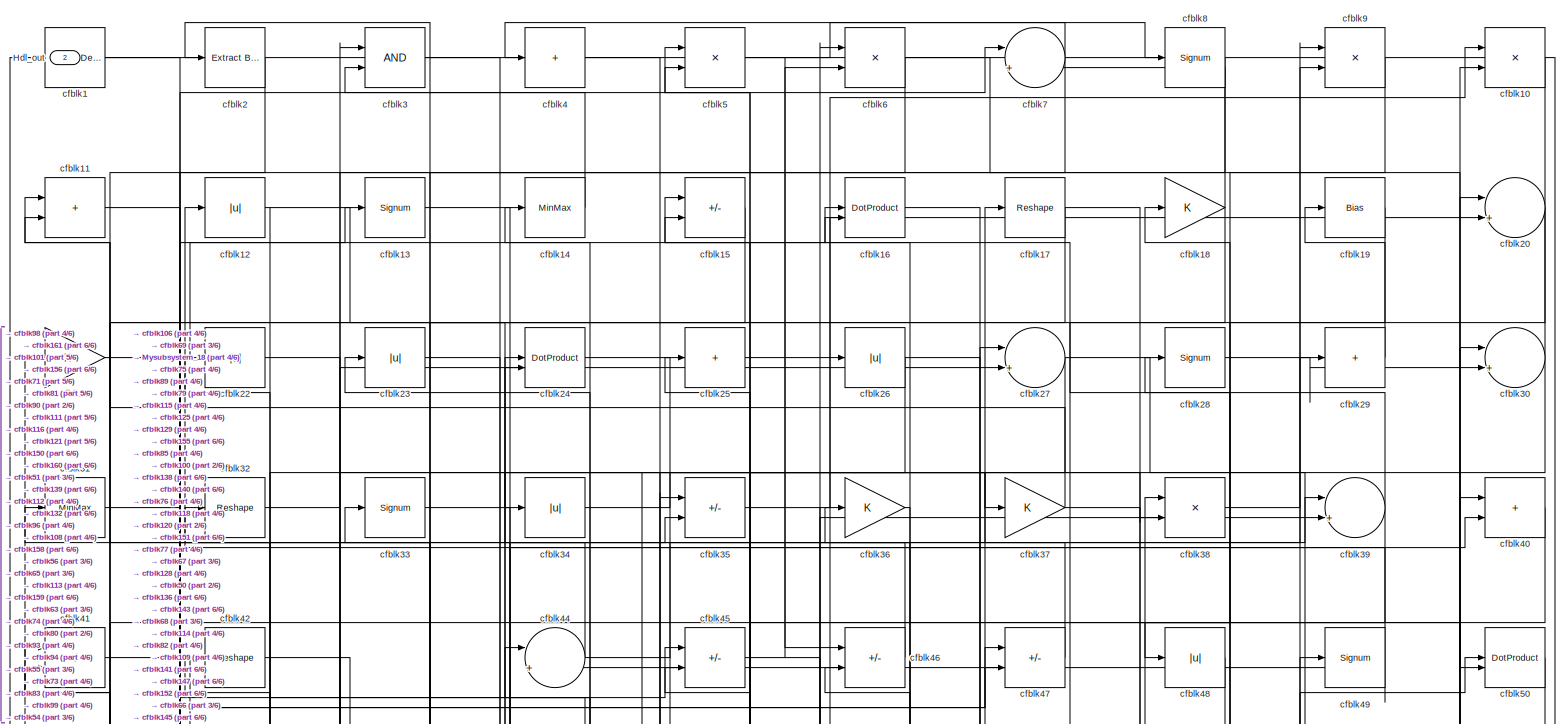
[diagram: root canvas - part 1/6, full width, top band]
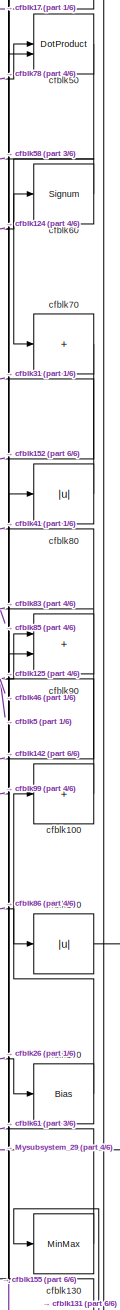
[diagram: root canvas - part 2/6, middle right region]
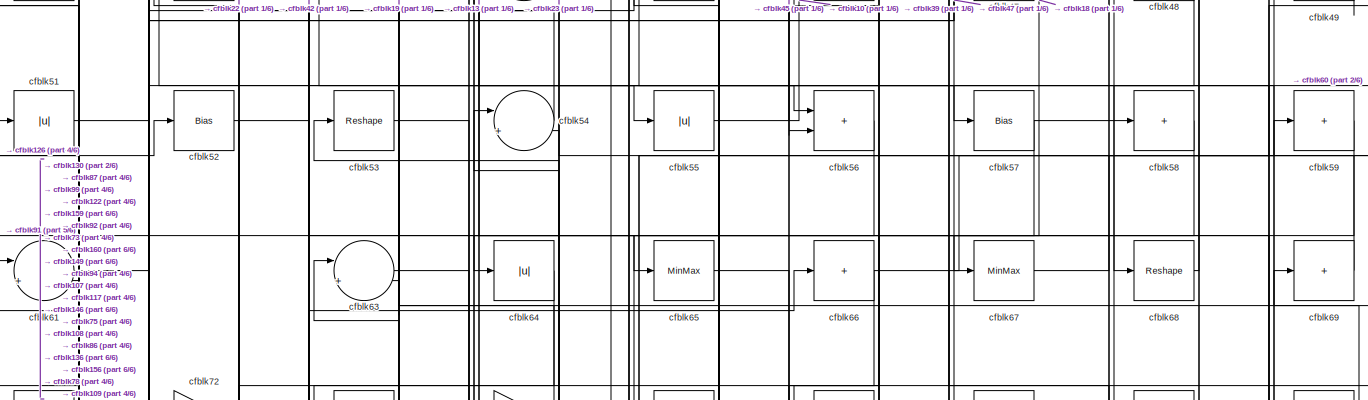
[diagram: root canvas - part 3/6, full width, middle band]
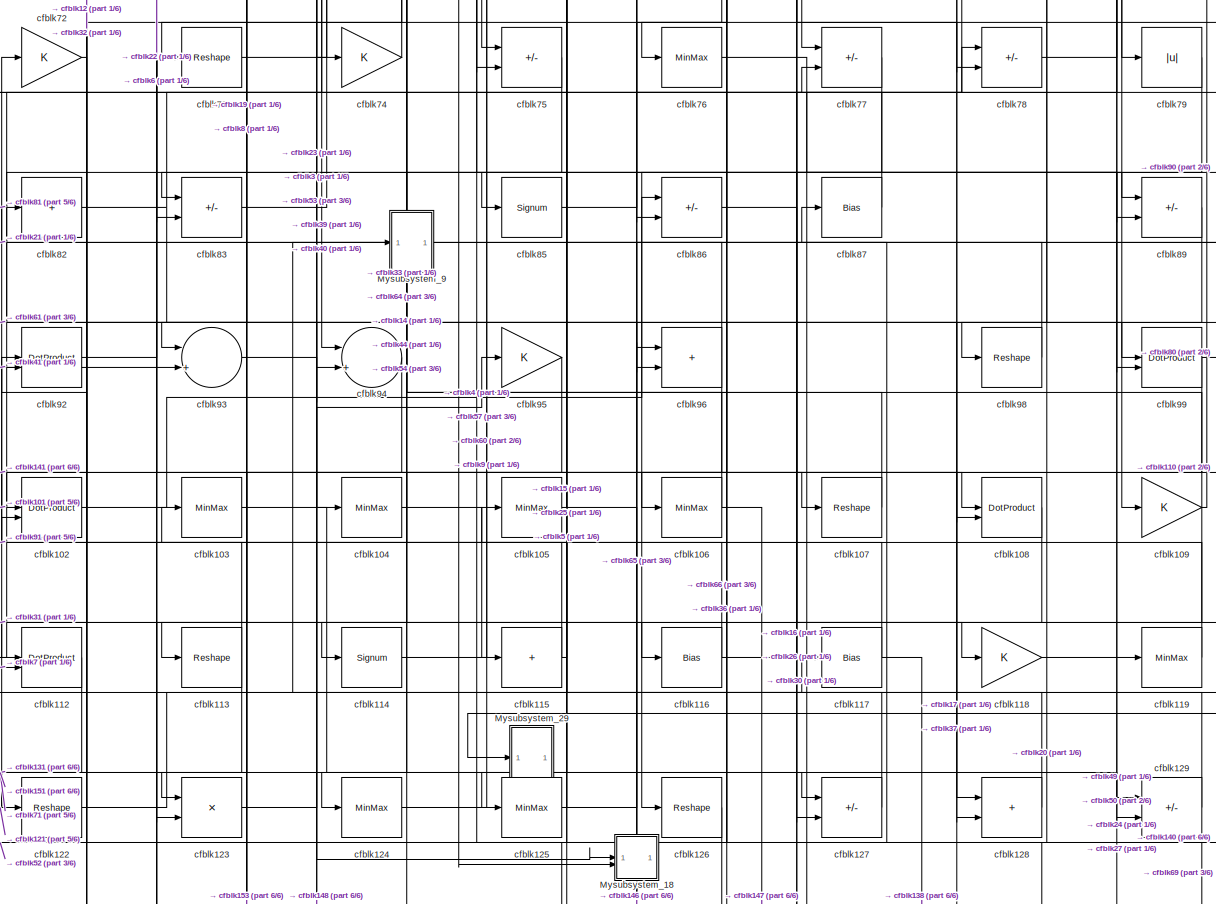
[diagram: root canvas - part 4/6, full width, middle band]
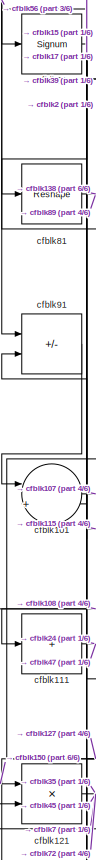
[diagram: root canvas - part 5/6, middle left region]
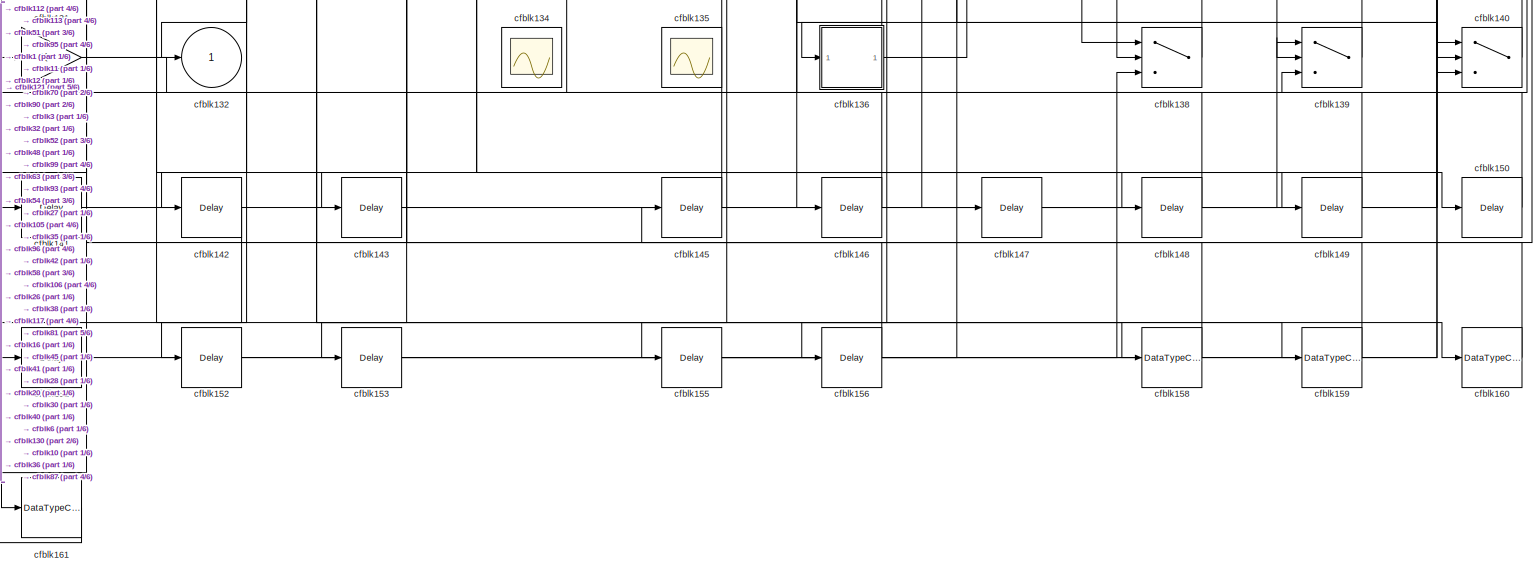
[diagram: root canvas - part 6/6, full width, bottom band]
MODEL slx_ad03935e5773
KIND model
CONFIG AbsTol = auto
CONFIG EnableMultiTasking = off
CONFIG FixedStep = auto
CONFIG MaxStep = auto
CONFIG MinStep = auto
CONFIG RelTol = 1e-3
CONFIG SampleTimeConstraint = Unconstrained
CONFIG SolverName = VariableStepAuto
CONFIG StartTime = 0.0
CONFIG StopTime = 10.0
BLOCK [Outport] Hdl_out
  OutDataTypeStr = uint8
  Port = 2
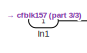
[diagram: Mysubsystem_18 - part 1/3, top left region]
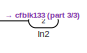
[diagram: Mysubsystem_18 - part 2/3, top left region]
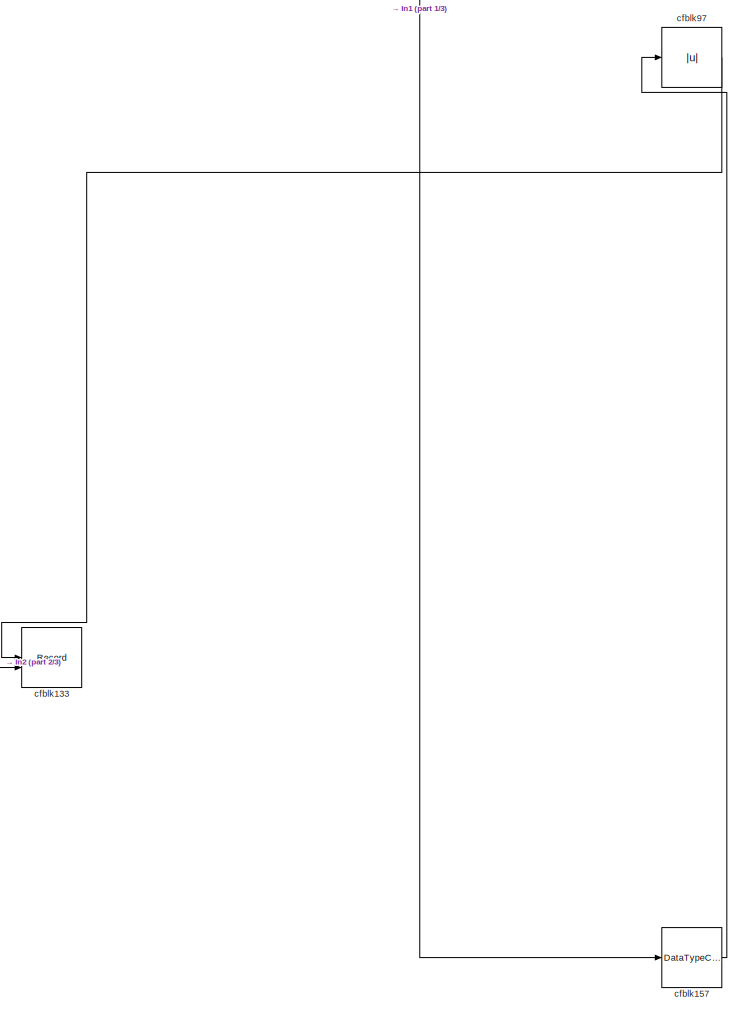
[diagram: Mysubsystem_18 - part 3/3, full width, bottom band]
BLOCK [SubSystem] Mysubsystem_18
  RTWFcnName = Mysubsystem_18
  RTWFcnNameOpts = User specified
  RTWFileNameOpts = Use function name
  RTWSystemCode = Reusable function
  TreatAsAtomicUnit = on
BLOCK [Inport] Mysubsystem_18/In1
BLOCK [Inport] Mysubsystem_18/In2
  Port = 2
BLOCK [Record] Mysubsystem_18/cfblk133
  CompatibilityTag = XY
  FileSettingsInternal = {"entries":[{"content":{"excelSettings":{"content":{},"type":"Streamout.ExcelSettings"}},"type":"Streamout.FileSettingStorage","uuid":""}],"packageUris":["http:\/\/schema.mathworks.com\/mf0\/streamout_blocks\/R2020a"],"version":"1.0"}
  Layout = [1 1]
  SignalsInternal = {"entries":[{"content":{},"type":"RecordBlkView.InputSignals","uuid":""}],"packageUris":["http:\/\/schema.mathworks.com\/mf0\/streamout_blocks\/R2020a"],"version":"1.0"}
  VisualizationBindings = {"xyplotplugin":{"info":[{"series":[],"subplotID":1}]}}
  st = -1
BLOCK [DataTypeConversion] Mysubsystem_18/cfblk157
  OutDataTypeStr = uint8
  RndMeth = Floor
  SaturateOnIntegerOverflow = off
BLOCK [Abs] Mysubsystem_18/cfblk97
  SaturateOnIntegerOverflow = off
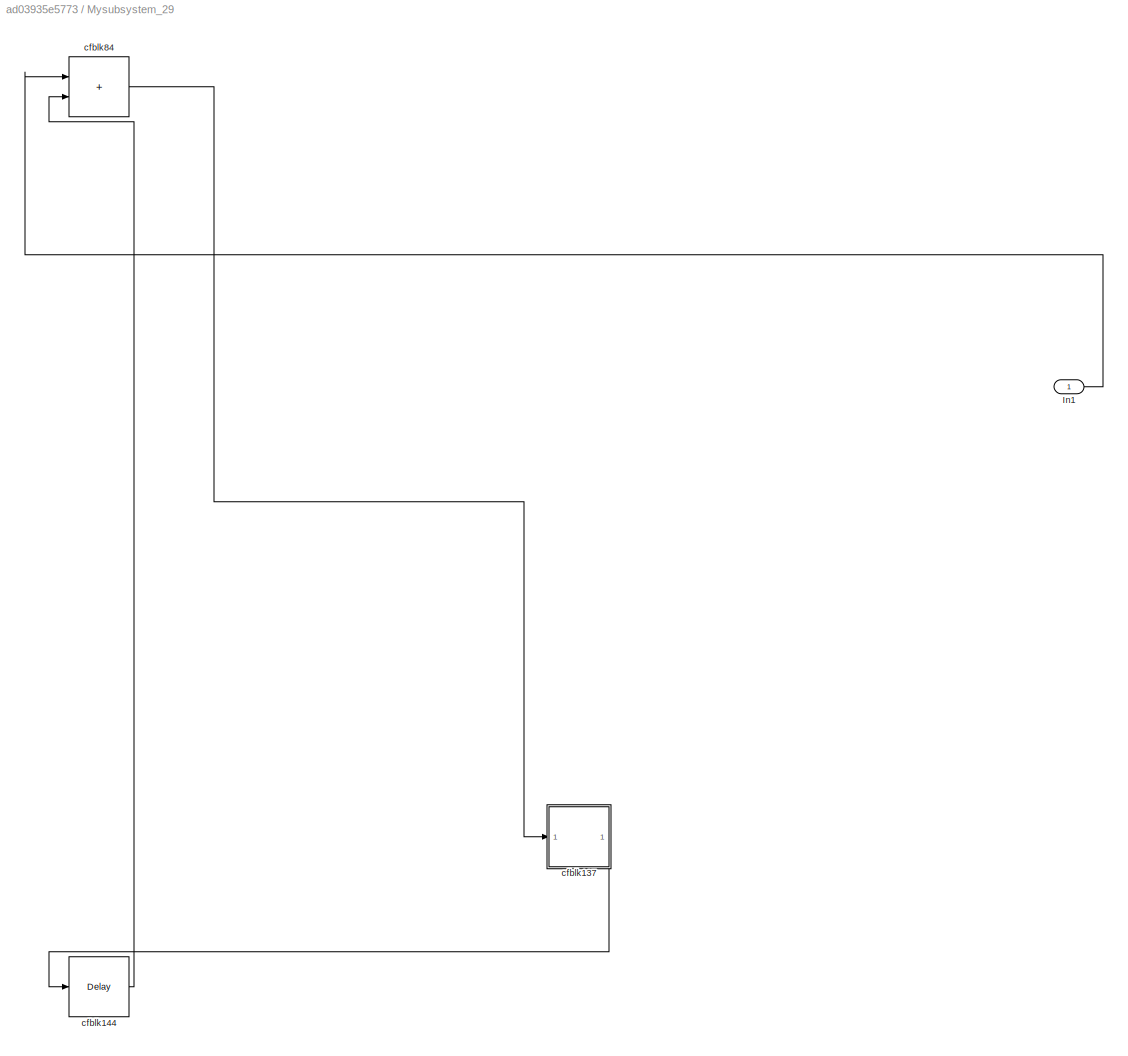
BLOCK [SubSystem] Mysubsystem_29
  RTWFcnName = Mysubsystem_29
  RTWFcnNameOpts = User specified
  RTWFileNameOpts = Use function name
  RTWSystemCode = Reusable function
  TreatAsAtomicUnit = on
BLOCK [Inport] Mysubsystem_29/In1
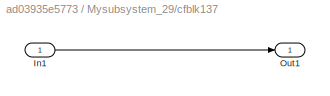
BLOCK [SubSystem] Mysubsystem_29/cfblk137
  LibrarySourceBlock = hdlsllib/Ports &\nSubsystems/Subsystem
BLOCK [Inport] Mysubsystem_29/cfblk137/In1
BLOCK [Outport] Mysubsystem_29/cfblk137/Out1
BLOCK [Delay] Mysubsystem_29/cfblk144
  InputPortMap = u0
  SampleTime = 1
BLOCK [Sum] Mysubsystem_29/cfblk84
  IconShape = rectangular
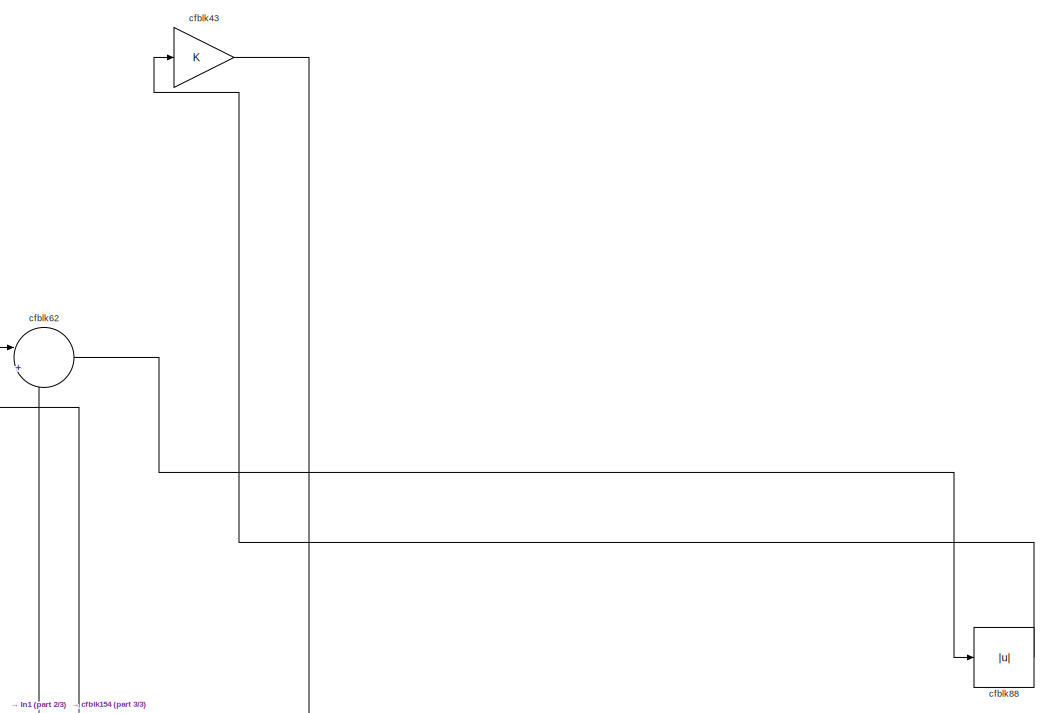
[diagram: Mysubsystem_9 - part 1/3, full width, top band]
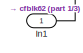
[diagram: Mysubsystem_9 - part 2/3, bottom right region]
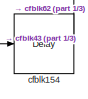
[diagram: Mysubsystem_9 - part 3/3, bottom center region]
BLOCK [SubSystem] Mysubsystem_9
  RTWFcnName = Mysubsystem_9
  RTWFcnNameOpts = User specified
  RTWFileNameOpts = Use function name
  RTWSystemCode = Reusable function
  TreatAsAtomicUnit = on
BLOCK [Inport] Mysubsystem_9/In1
BLOCK [Delay] Mysubsystem_9/cfblk154
  InputPortMap = u0
  SampleTime = 1
BLOCK [Gain] Mysubsystem_9/cfblk43
BLOCK [Sum] Mysubsystem_9/cfblk62
  Inputs = |++
BLOCK [Abs] Mysubsystem_9/cfblk88
  SaturateOnIntegerOverflow = off
BLOCK [Reference] cfblk1  REF=simulink/Logic and Bit
Operations/Detect
Decrease
  LibrarySourceBlock = hdlsllib/Logic and Bit\nOperations/Detect\nDecrease
  SourceBlock = simulink/Logic and Bit\nOperations/Detect\nDecrease
  SourceType = Detect Decrease
BLOCK [Product] cfblk10
  Inputs = */
  OutDataTypeStr = uint8
  RndMeth = Zero
  SaturateOnIntegerOverflow = on
BLOCK [Sum] cfblk100
  IconShape = rectangular
  Inputs = +
  OutDataTypeStr = uint8
BLOCK [Sum] cfblk101
  Inputs = |++
  OutDataTypeStr = uint8
BLOCK [DotProduct] cfblk102
  OutDataTypeStr = uint8
BLOCK [MinMax] cfblk103
  OutDataTypeStr = uint8
BLOCK [MinMax] cfblk104
  OutDataTypeStr = uint8
BLOCK [MinMax] cfblk105
  OutDataTypeStr = uint8
BLOCK [MinMax] cfblk106
  OutDataTypeStr = uint8
BLOCK [Reshape] cfblk107
BLOCK [DotProduct] cfblk108
  OutDataTypeStr = uint8
BLOCK [Gain] cfblk109
  OutDataTypeStr = uint8
BLOCK [Sum] cfblk11
  IconShape = rectangular
  OutDataTypeStr = uint8
BLOCK [Abs] cfblk110
  OutDataTypeStr = uint8
  SaturateOnIntegerOverflow = off
BLOCK [Sum] cfblk111
  IconShape = rectangular
  Inputs = +
  OutDataTypeStr = uint8
BLOCK [DotProduct] cfblk112
  OutDataTypeStr = uint8
BLOCK [Reshape] cfblk113
BLOCK [Signum] cfblk114
BLOCK [Sum] cfblk115
  IconShape = rectangular
  Inputs = +
  OutDataTypeStr = uint8
BLOCK [Bias] cfblk116
  Bias = 0.0
  SaturateOnIntegerOverflow = off
BLOCK [Bias] cfblk117
  Bias = 0.0
  SaturateOnIntegerOverflow = off
BLOCK [Gain] cfblk118
  OutDataTypeStr = uint8
BLOCK [MinMax] cfblk119
  OutDataTypeStr = uint8
BLOCK [Abs] cfblk12
  OutDataTypeStr = uint8
  SaturateOnIntegerOverflow = off
BLOCK [Bias] cfblk120
  Bias = 0.0
  SaturateOnIntegerOverflow = off
BLOCK [Product] cfblk121
  Inputs = */
  OutDataTypeStr = uint8
  RndMeth = Zero
  SaturateOnIntegerOverflow = on
BLOCK [Reshape] cfblk122
BLOCK [Product] cfblk123
  Inputs = */
  OutDataTypeStr = uint8
  RndMeth = Zero
  SaturateOnIntegerOverflow = on
BLOCK [MinMax] cfblk124
  OutDataTypeStr = uint8
BLOCK [MinMax] cfblk125
  OutDataTypeStr = uint8
BLOCK [Reshape] cfblk126
BLOCK [Sum] cfblk127
  IconShape = rectangular
  Inputs = +-
  OutDataTypeStr = uint8
BLOCK [Sum] cfblk128
  IconShape = rectangular
  OutDataTypeStr = uint8
BLOCK [Sum] cfblk129
  IconShape = rectangular
  Inputs = +-
  OutDataTypeStr = uint8
BLOCK [Signum] cfblk13
BLOCK [MinMax] cfblk130
  OutDataTypeStr = uint8
BLOCK [Gain] cfblk131
  OutDataTypeStr = uint8
BLOCK [Outport] cfblk132
  OutDataTypeStr = uint8
  VectorParamsAs1DForOutWhenUnconnected = off
BLOCK [Scope] cfblk134
  Floating = on
  NumInputPorts = 1
  ScopeSpecificationString = Simulink.scopes.TimeScopeBlockCfg('CurrentConfiguration', extmgr.ConfigurationSet(extmgr.Configuration('Core','General UI',true,'FigureColor',[0.156862745098039 0.156862745098039 0.156862745098039]),extmgr.Configuration('Core','Source UI',true),extmgr.Configuration('Sources','WiredSimulink',true,'DataLoggingVariableName','ScopeData1','DataLoggingSaveFormat','StructureWithTime','DataLoggingLimitDat...<+2713ch>
BLOCK [Scope] cfblk135
  Floating = on
  NumInputPorts = 1
  ScopeSpecificationString = Simulink.scopes.TimeScopeBlockCfg('CurrentConfiguration', extmgr.ConfigurationSet(extmgr.Configuration('Core','General UI',true,'FigureColor',[0.156862745098039 0.156862745098039 0.156862745098039]),extmgr.Configuration('Core','Source UI',true),extmgr.Configuration('Sources','WiredSimulink',true,'DataLoggingVariableName','ScopeData1','DataLoggingSaveFormat','StructureWithTime','DataLoggingLimitDat...<+2713ch>
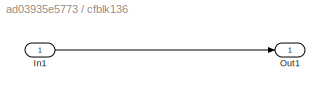
BLOCK [SubSystem] cfblk136
  LibrarySourceBlock = hdlsllib/Ports &\nSubsystems/Subsystem
BLOCK [Inport] cfblk136/In1
BLOCK [Outport] cfblk136/Out1
BLOCK [Switch] cfblk138
  InputSameDT = off
  OutDataTypeStr = uint8
  SaturateOnIntegerOverflow = off
BLOCK [Switch] cfblk139
  InputSameDT = off
  OutDataTypeStr = uint8
  SaturateOnIntegerOverflow = off
BLOCK [MinMax] cfblk14
  OutDataTypeStr = uint8
BLOCK [Switch] cfblk140
  InputSameDT = off
  OutDataTypeStr = uint8
  SaturateOnIntegerOverflow = off
BLOCK [Delay] cfblk141
  InputPortMap = u0
  SampleTime = 1
BLOCK [Delay] cfblk142
  InputPortMap = u0
  SampleTime = 1
BLOCK [Delay] cfblk143
  InputPortMap = u0
  SampleTime = 1
BLOCK [Delay] cfblk145
  InputPortMap = u0
  SampleTime = 1
BLOCK [Delay] cfblk146
  InputPortMap = u0
  SampleTime = 1
BLOCK [Delay] cfblk147
  InputPortMap = u0
  SampleTime = 1
BLOCK [Delay] cfblk148
  InputPortMap = u0
  SampleTime = 1
BLOCK [Delay] cfblk149
  InputPortMap = u0
  SampleTime = 1
BLOCK [Sum] cfblk15
  IconShape = rectangular
  Inputs = +-
  OutDataTypeStr = uint8
BLOCK [Delay] cfblk150
  InputPortMap = u0
  SampleTime = 1
BLOCK [Delay] cfblk151
  InputPortMap = u0
  SampleTime = 1
BLOCK [Delay] cfblk152
  InputPortMap = u0
  SampleTime = 1
BLOCK [Delay] cfblk153
  InputPortMap = u0
  SampleTime = 1
BLOCK [Delay] cfblk155
  InputPortMap = u0
  SampleTime = 1
BLOCK [Delay] cfblk156
  InputPortMap = u0
  SampleTime = 1
BLOCK [DataTypeConversion] cfblk158
  OutDataTypeStr = uint8
  RndMeth = Floor
  SaturateOnIntegerOverflow = off
BLOCK [DataTypeConversion] cfblk159
  OutDataTypeStr = uint8
  RndMeth = Floor
  SaturateOnIntegerOverflow = off
BLOCK [DotProduct] cfblk16
  OutDataTypeStr = uint8
BLOCK [DataTypeConversion] cfblk160
  OutDataTypeStr = uint8
  RndMeth = Floor
  SaturateOnIntegerOverflow = off
BLOCK [DataTypeConversion] cfblk161
  OutDataTypeStr = uint8
  RndMeth = Floor
  SaturateOnIntegerOverflow = off
BLOCK [Reshape] cfblk17
BLOCK [Gain] cfblk18
  OutDataTypeStr = uint8
BLOCK [Bias] cfblk19
  Bias = 0.0
  SaturateOnIntegerOverflow = off
BLOCK [Reference] cfblk2  REF=simulink/Logic and Bit
Operations/Extract Bits
  LibrarySourceBlock = hdlsllib/Logic and Bit\nOperations/Extract Bits
  SourceBlock = simulink/Logic and Bit\nOperations/Extract Bits
  SourceType = Extract Bits
BLOCK [Sum] cfblk20
  Inputs = |++
  OutDataTypeStr = uint8
BLOCK [Gain] cfblk21
  OutDataTypeStr = uint8
BLOCK [Abs] cfblk22
  OutDataTypeStr = uint8
  SaturateOnIntegerOverflow = off
BLOCK [Abs] cfblk23
  OutDataTypeStr = uint8
  SaturateOnIntegerOverflow = off
BLOCK [DotProduct] cfblk24
  OutDataTypeStr = uint8
BLOCK [Sum] cfblk25
  IconShape = rectangular
  Inputs = +
  OutDataTypeStr = uint8
BLOCK [Abs] cfblk26
  OutDataTypeStr = uint8
  SaturateOnIntegerOverflow = off
BLOCK [Sum] cfblk27
  Inputs = |++
  OutDataTypeStr = uint8
BLOCK [Signum] cfblk28
BLOCK [Sum] cfblk29
  IconShape = rectangular
  Inputs = +
  OutDataTypeStr = uint8
BLOCK [Logic] cfblk3
  AllPortsSameDT = off
  OutDataTypeStr = boolean
BLOCK [Sum] cfblk30
  Inputs = |++
  OutDataTypeStr = uint8
BLOCK [MinMax] cfblk31
  OutDataTypeStr = uint8
BLOCK [Reshape] cfblk32
BLOCK [Signum] cfblk33
BLOCK [Abs] cfblk34
  OutDataTypeStr = uint8
  SaturateOnIntegerOverflow = off
BLOCK [Sum] cfblk35
  IconShape = rectangular
  Inputs = +-
  OutDataTypeStr = uint8
BLOCK [Gain] cfblk36
  OutDataTypeStr = uint8
BLOCK [Gain] cfblk37
  OutDataTypeStr = uint8
BLOCK [Product] cfblk38
  Inputs = */
  OutDataTypeStr = uint8
  RndMeth = Zero
  SaturateOnIntegerOverflow = on
BLOCK [Sum] cfblk39
  Inputs = |++
  OutDataTypeStr = uint8
BLOCK [Sum] cfblk4
  IconShape = rectangular
  Inputs = +
  OutDataTypeStr = uint8
BLOCK [Sum] cfblk40
  IconShape = rectangular
  OutDataTypeStr = uint8
BLOCK [Sum] cfblk41
  IconShape = rectangular
  Inputs = +-
  OutDataTypeStr = uint8
BLOCK [Reshape] cfblk42
BLOCK [Sum] cfblk44
  Inputs = |++
  OutDataTypeStr = uint8
BLOCK [Sum] cfblk45
  IconShape = rectangular
  Inputs = +-
  OutDataTypeStr = uint8
BLOCK [Sum] cfblk46
  IconShape = rectangular
  Inputs = +-
  OutDataTypeStr = uint8
BLOCK [Sum] cfblk47
  IconShape = rectangular
  Inputs = +-
  OutDataTypeStr = uint8
BLOCK [Abs] cfblk48
  OutDataTypeStr = uint8
  SaturateOnIntegerOverflow = off
BLOCK [Signum] cfblk49
BLOCK [Product] cfblk5
  Inputs = */
  OutDataTypeStr = uint8
  RndMeth = Zero
  SaturateOnIntegerOverflow = on
BLOCK [DotProduct] cfblk50
  OutDataTypeStr = uint8
BLOCK [Abs] cfblk51
  OutDataTypeStr = uint8
  SaturateOnIntegerOverflow = off
BLOCK [Bias] cfblk52
  Bias = 0.0
  SaturateOnIntegerOverflow = off
BLOCK [Reshape] cfblk53
BLOCK [Sum] cfblk54
  Inputs = |++
  OutDataTypeStr = uint8
BLOCK [Abs] cfblk55
  OutDataTypeStr = uint8
  SaturateOnIntegerOverflow = off
BLOCK [Sum] cfblk56
  IconShape = rectangular
  OutDataTypeStr = uint8
BLOCK [Bias] cfblk57
  Bias = 0.0
  SaturateOnIntegerOverflow = off
BLOCK [Sum] cfblk58
  IconShape = rectangular
  Inputs = +
  OutDataTypeStr = uint8
BLOCK [Sum] cfblk59
  IconShape = rectangular
  Inputs = +
  OutDataTypeStr = uint8
BLOCK [Product] cfblk6
  Inputs = */
  OutDataTypeStr = uint8
  RndMeth = Zero
  SaturateOnIntegerOverflow = on
BLOCK [Signum] cfblk60
BLOCK [Sum] cfblk61
  Inputs = |++
  OutDataTypeStr = uint8
BLOCK [Sum] cfblk63
  Inputs = |++
  OutDataTypeStr = uint8
BLOCK [Abs] cfblk64
  OutDataTypeStr = uint8
  SaturateOnIntegerOverflow = off
BLOCK [MinMax] cfblk65
  OutDataTypeStr = uint8
BLOCK [Sum] cfblk66
  IconShape = rectangular
  Inputs = +
  OutDataTypeStr = uint8
BLOCK [MinMax] cfblk67
  OutDataTypeStr = uint8
BLOCK [Reshape] cfblk68
BLOCK [Sum] cfblk69
  IconShape = rectangular
  Inputs = +
  OutDataTypeStr = uint8
BLOCK [Sum] cfblk7
  Inputs = |++
  OutDataTypeStr = uint8
BLOCK [Sum] cfblk70
  IconShape = rectangular
  Inputs = +
  OutDataTypeStr = uint8
BLOCK [Signum] cfblk71
BLOCK [Gain] cfblk72
  OutDataTypeStr = uint8
BLOCK [Reshape] cfblk73
BLOCK [Gain] cfblk74
  OutDataTypeStr = uint8
BLOCK [Sum] cfblk75
  IconShape = rectangular
  Inputs = +-
  OutDataTypeStr = uint8
BLOCK [MinMax] cfblk76
  OutDataTypeStr = uint8
BLOCK [Sum] cfblk77
  IconShape = rectangular
  Inputs = +-
  OutDataTypeStr = uint8
BLOCK [Sum] cfblk78
  IconShape = rectangular
  Inputs = +-
  OutDataTypeStr = uint8
BLOCK [Abs] cfblk79
  OutDataTypeStr = uint8
  SaturateOnIntegerOverflow = off
BLOCK [Signum] cfblk8
BLOCK [Abs] cfblk80
  OutDataTypeStr = uint8
  SaturateOnIntegerOverflow = off
BLOCK [Reshape] cfblk81
BLOCK [Sum] cfblk82
  IconShape = rectangular
  Inputs = +
  OutDataTypeStr = uint8
BLOCK [Sum] cfblk83
  IconShape = rectangular
  Inputs = +-
  OutDataTypeStr = uint8
BLOCK [Signum] cfblk85
BLOCK [Sum] cfblk86
  IconShape = rectangular
  Inputs = +-
  OutDataTypeStr = uint8
BLOCK [Bias] cfblk87
  Bias = 0.0
  SaturateOnIntegerOverflow = off
BLOCK [Sum] cfblk89
  IconShape = rectangular
  Inputs = +-
  OutDataTypeStr = uint8
BLOCK [Product] cfblk9
  Inputs = */
  OutDataTypeStr = uint8
  RndMeth = Zero
  SaturateOnIntegerOverflow = on
BLOCK [Sum] cfblk90
  IconShape = rectangular
  OutDataTypeStr = uint8
BLOCK [Sum] cfblk91
  IconShape = rectangular
  Inputs = +-
  OutDataTypeStr = uint8
BLOCK [DotProduct] cfblk92
  OutDataTypeStr = uint8
BLOCK [Sum] cfblk93
  Inputs = |++
  OutDataTypeStr = uint8
BLOCK [Sum] cfblk94
  Inputs = |++
  OutDataTypeStr = uint8
BLOCK [Gain] cfblk95
  OutDataTypeStr = uint8
BLOCK [Sum] cfblk96
  IconShape = rectangular
  OutDataTypeStr = uint8
BLOCK [Reshape] cfblk98
BLOCK [DotProduct] cfblk99
  OutDataTypeStr = uint8
LINE Mysubsystem_18/In1:1 -> Mysubsystem_18/cfblk157:1
LINE Mysubsystem_18/In2:1 -> Mysubsystem_18/cfblk133:2
LINE Mysubsystem_18/cfblk157:1 -> Mysubsystem_18/cfblk97:1
LINE Mysubsystem_18/cfblk97:1 -> Mysubsystem_18/cfblk133:1
LINE Mysubsystem_29/In1:1 -> Mysubsystem_29/cfblk84:1
LINE Mysubsystem_29/cfblk137/In1:1 -> Mysubsystem_29/cfblk137/Out1:1
LINE Mysubsystem_29/cfblk137:1 -> Mysubsystem_29/cfblk144:1
LINE Mysubsystem_29/cfblk144:1 -> Mysubsystem_29/cfblk84:2
LINE Mysubsystem_29/cfblk84:1 -> Mysubsystem_29/cfblk137:1
LINE Mysubsystem_9/In1:1 -> Mysubsystem_9/cfblk62:2
LINE Mysubsystem_9/cfblk154:1 -> Mysubsystem_9/cfblk62:1
LINE Mysubsystem_9/cfblk43:1 -> Mysubsystem_9/cfblk154:1
LINE Mysubsystem_9/cfblk62:1 -> Mysubsystem_9/cfblk88:1
LINE Mysubsystem_9/cfblk88:1 -> Mysubsystem_9/cfblk43:1
NET cfblk100:1 -> cfblk46:2, cfblk5:1
LINE cfblk101:1 -> cfblk107:1
LINE cfblk102:1 -> cfblk86:1
LINE cfblk103:1 -> cfblk128:2
LINE cfblk104:1 -> cfblk115:1
LINE cfblk105:1 -> cfblk146:1
NET cfblk106:1 -> cfblk147:1, cfblk44:1
LINE cfblk107:1 -> cfblk53:1
LINE cfblk108:1 -> cfblk121:2
NET cfblk109:1 -> cfblk123:2, cfblk14:1, cfblk69:1
LINE cfblk10:1 -> cfblk145:1
LINE cfblk110:1 -> Mysubsystem_29:1
NET cfblk111:1 -> cfblk24:1, cfblk47:2
LINE cfblk112:1 -> cfblk131:1
NET cfblk113:1 -> cfblk102:2, cfblk151:1
LINE cfblk114:1 -> cfblk9:1
NET cfblk115:1 -> cfblk25:1, cfblk91:2
NET cfblk116:1 -> cfblk78:1, cfblk92:1
NET cfblk117:1 -> cfblk138:1, cfblk54:2, cfblk82:1
LINE cfblk118:1 -> cfblk129:1
LINE cfblk119:1 -> cfblk103:1
LINE cfblk11:1 -> cfblk150:1
LINE cfblk120:1 -> cfblk100:1
NET cfblk121:1 -> cfblk35:2, cfblk45:1, cfblk72:1, cfblk7:1
NET cfblk122:1 -> cfblk117:1, cfblk92:2
LINE cfblk123:1 -> cfblk95:1
LINE cfblk124:1 -> cfblk60:1
NET cfblk125:1 -> cfblk15:1, cfblk90:1
LINE cfblk126:1 -> cfblk52:1
LINE cfblk127:1 -> cfblk105:1
LINE cfblk128:1 -> Mysubsystem_9:1
LINE cfblk129:1 -> cfblk5:2
NET cfblk12:1 -> cfblk132:1, cfblk94:1
LINE cfblk130:1 -> cfblk61:1
LINE cfblk131:1 -> cfblk130:1
LINE cfblk136/In1:1 -> cfblk136/Out1:1
NET cfblk136:1 -> cfblk38:1, cfblk42:1
NET cfblk138:1 -> cfblk16:1, cfblk45:2
LINE cfblk139:1 -> cfblk28:1
LINE cfblk13:1 -> cfblk55:1
NET cfblk140:1 -> cfblk36:1, cfblk87:1
LINE cfblk141:1 -> cfblk40:1
LINE cfblk142:1 -> cfblk161:1
LINE cfblk143:1 -> cfblk139:1
LINE cfblk145:1 -> cfblk35:1
LINE cfblk146:1 -> cfblk54:1
LINE cfblk147:1 -> cfblk30:1
LINE cfblk148:1 -> cfblk96:1
LINE cfblk149:1 -> cfblk139:3
LINE cfblk14:1 -> cfblk2:1
LINE cfblk150:1 -> cfblk121:1
LINE cfblk151:1 -> cfblk27:1
LINE cfblk152:1 -> cfblk20:1
LINE cfblk153:1 -> cfblk138:3
LINE cfblk155:1 -> cfblk90:2
LINE cfblk156:1 -> cfblk41:2
LINE cfblk158:1 -> cfblk3:1
LINE cfblk159:1 -> cfblk3:2
LINE cfblk15:1 -> cfblk101:2
NET cfblk160:1 -> cfblk51:1, cfblk63:1
LINE cfblk161:1 -> cfblk1:1
LINE cfblk16:1 -> cfblk118:1
NET cfblk17:1 -> cfblk129:2, cfblk50:2, cfblk81:1
NET cfblk18:1 -> cfblk67:1, cfblk7:2
NET cfblk19:1 -> cfblk63:2, cfblk93:1
LINE cfblk1:1 -> cfblk160:1
LINE cfblk20:1 -> cfblk98:1
NET cfblk21:1 -> cfblk13:1, cfblk96:2
NET cfblk22:1 -> cfblk108:2, cfblk38:2
LINE cfblk23:1 -> cfblk74:1
LINE cfblk24:1 -> cfblk79:1
LINE cfblk25:1 -> cfblk26:1
NET cfblk26:1 -> cfblk112:1, cfblk120:1, cfblk140:3
NET cfblk27:1 -> cfblk109:1, cfblk155:1
LINE cfblk28:1 -> cfblk30:2
LINE cfblk29:1 -> cfblk19:1
LINE cfblk2:1 -> cfblk111:1
NET cfblk30:1 -> Hdl_out:1, Mysubsystem_18:2, cfblk34:1, cfblk75:2, cfblk77:1
NET cfblk31:1 -> cfblk116:1, cfblk16:2
NET cfblk32:1 -> cfblk158:1, cfblk27:2
LINE cfblk33:1 -> cfblk99:2
LINE cfblk34:1 -> cfblk37:1
NET cfblk35:1 -> cfblk140:2, cfblk20:2
LINE cfblk36:1 -> cfblk76:1
NET cfblk37:1 -> cfblk11:2, cfblk128:1
LINE cfblk38:1 -> cfblk9:2
NET cfblk39:1 -> cfblk15:2, cfblk71:1
LINE cfblk3:1 -> Mysubsystem_18:1
LINE cfblk40:1 -> cfblk125:1
NET cfblk41:1 -> cfblk139:2, cfblk93:2
NET cfblk42:1 -> cfblk56:1, cfblk65:1
NET cfblk44:1 -> cfblk11:1, cfblk29:1
NET cfblk45:1 -> cfblk56:2, cfblk6:2
LINE cfblk46:1 -> cfblk24:2
LINE cfblk47:1 -> cfblk17:1
LINE cfblk48:1 -> cfblk143:1
NET cfblk49:1 -> cfblk12:1, cfblk44:2
LINE cfblk4:1 -> cfblk89:2
LINE cfblk50:1 -> cfblk70:1
NET cfblk51:1 -> cfblk47:1, cfblk57:1
NET cfblk52:1 -> cfblk122:1, cfblk159:1
LINE cfblk53:1 -> cfblk94:2
LINE cfblk54:1 -> cfblk22:1
NET cfblk55:1 -> cfblk10:1, cfblk39:2
LINE cfblk56:1 -> cfblk91:1
NET cfblk57:1 -> cfblk68:1, cfblk75:1
NET cfblk58:1 -> cfblk136:1, cfblk156:1
LINE cfblk59:1 -> cfblk64:1
NET cfblk5:1 -> cfblk46:1, cfblk8:1
LINE cfblk60:1 -> cfblk58:1
LINE cfblk61:1 -> cfblk99:1
LINE cfblk63:1 -> cfblk149:1
LINE cfblk64:1 -> cfblk73:1
LINE cfblk65:1 -> cfblk108:1
NET cfblk66:1 -> cfblk10:2, cfblk78:2, cfblk86:2
LINE cfblk67:1 -> cfblk59:1
LINE cfblk68:1 -> cfblk18:1
LINE cfblk69:1 -> cfblk23:1
NET cfblk6:1 -> cfblk140:1, cfblk83:2
LINE cfblk70:1 -> cfblk152:1
LINE cfblk71:1 -> cfblk127:1
LINE cfblk72:1 -> cfblk102:1
LINE cfblk73:1 -> cfblk40:2
LINE cfblk74:1 -> cfblk33:1
LINE cfblk75:1 -> cfblk124:1
LINE cfblk76:1 -> cfblk119:1
LINE cfblk77:1 -> cfblk126:1
LINE cfblk78:1 -> cfblk50:1
LINE cfblk79:1 -> cfblk127:2
NET cfblk7:1 -> cfblk112:2, cfblk4:1
LINE cfblk80:1 -> cfblk31:1
NET cfblk81:1 -> cfblk138:2, cfblk89:1
NET cfblk82:1 -> cfblk104:1, cfblk49:1
LINE cfblk83:1 -> cfblk39:1
NET cfblk85:1 -> cfblk6:1, cfblk77:2
LINE cfblk86:1 -> cfblk110:1
LINE cfblk87:1 -> cfblk61:2
LINE cfblk89:1 -> cfblk106:1
LINE cfblk8:1 -> cfblk113:1
NET cfblk90:1 -> cfblk142:1, cfblk41:1, cfblk83:1, cfblk85:1
LINE cfblk91:1 -> cfblk101:1
LINE cfblk92:1 -> cfblk66:1
LINE cfblk93:1 -> cfblk148:1
LINE cfblk94:1 -> cfblk123:1
LINE cfblk95:1 -> cfblk141:1
NET cfblk96:1 -> cfblk114:1, cfblk32:1
LINE cfblk98:1 -> cfblk21:1
NET cfblk99:1 -> cfblk153:1, cfblk80:1
LINE cfblk9:1 -> cfblk48:1
note: NET lines group one-source signal fan-out (src -> all destinations, sorted); 1:1 wires keep LINE
